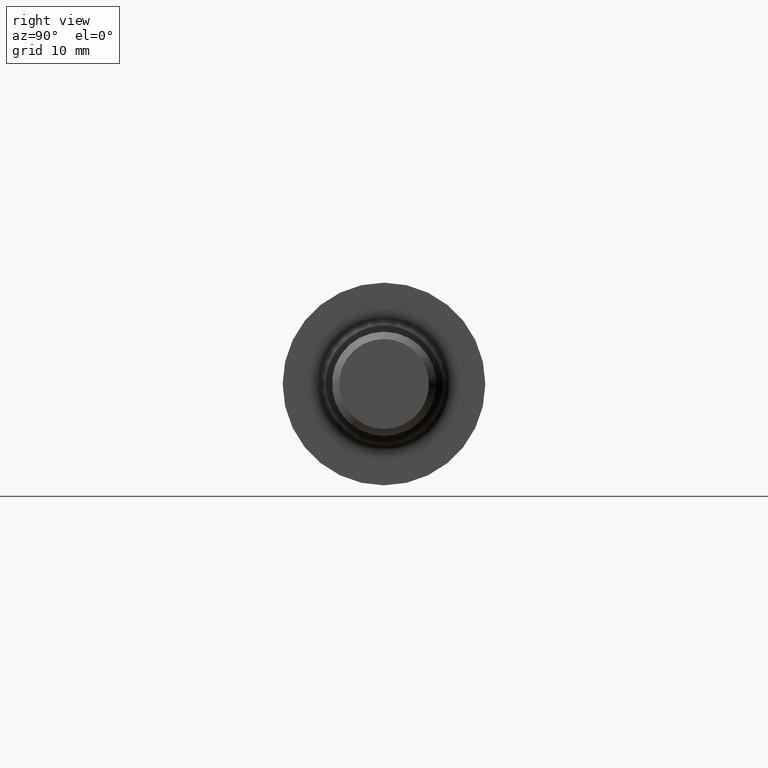
[diagram: clean part render]
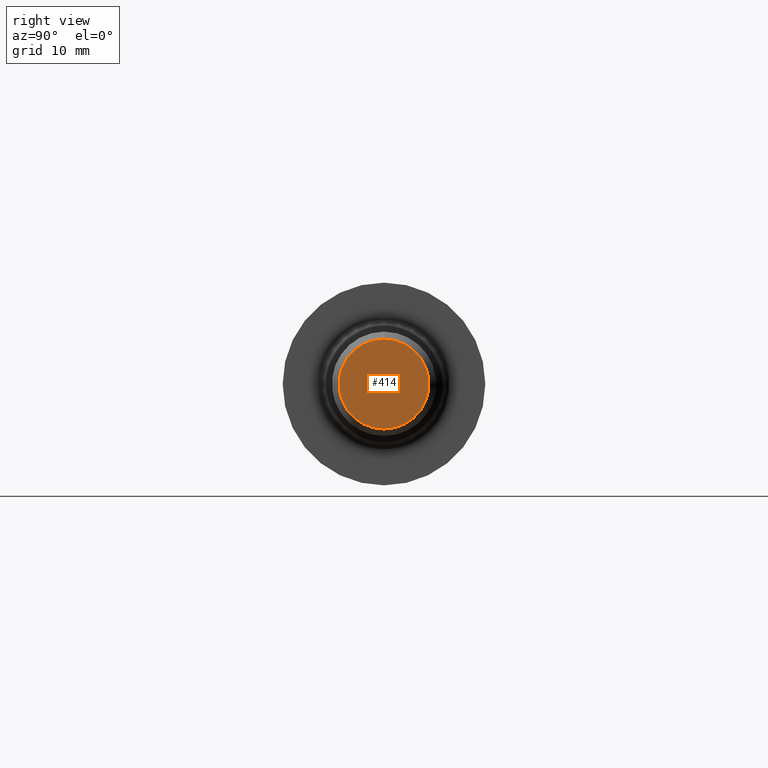
[diagram: same view with one face highlighted and labeled with its STEP entity id]
A machine part, right view. The second image highlights one B-rep face of the part: STEP entity #414.
In plain terms, the highlighted planar face has unit normal (-1, 0, -0).
Its self-contained STEP definition (entity closure, byte-faithful):
#67 = AXIS2_PLACEMENT_3D ( 'NONE', #779, #394, #644 ) ;
#72 = DIRECTION ( 'NONE',  ( -1.000000000000000000, -0.0000000000000000000, -0.0000000000000000000 ) ) ;
#110 = AXIS2_PLACEMENT_3D ( 'NONE', #528, #72, #656 ) ;
#147 = EDGE_CURVE ( 'NONE', #568, #497, #655, .T. ) ;
#198 = ORIENTED_EDGE ( 'NONE', *, *, #147, .F. ) ;
#354 = ORIENTED_EDGE ( 'NONE', *, *, #752, .F. ) ;
#368 = CARTESIAN_POINT ( 'NONE',  ( 3.250000000000000000, 0.0000000000000000000, 0.0000000000000000000 ) ) ;
#394 = DIRECTION ( 'NONE',  ( -1.000000000000000000, 0.0000000000000000000, -0.0000000000000000000 ) ) ;
#414 = ADVANCED_FACE ( 'NONE', ( #772 ), #718, .F. ) ;
#433 = DIRECTION ( 'NONE',  ( 0.0000000000000000000, 0.0000000000000000000, 1.000000000000000000 ) ) ;
#466 = CIRCLE ( 'NONE', #110, 0.2173589838486224002 ) ;
#497 = VERTEX_POINT ( 'NONE', #699 ) ;
#528 = CARTESIAN_POINT ( 'NONE',  ( 3.250000000000000000, 0.0000000000000000000, 0.0000000000000000000 ) ) ;
#566 = CARTESIAN_POINT ( 'NONE',  ( 3.250000000000000000, 0.0000000000000000000, 0.2173589838486224002 ) ) ;
#568 = VERTEX_POINT ( 'NONE', #566 ) ;
#644 = DIRECTION ( 'NONE',  ( -0.0000000000000000000, 0.0000000000000000000, 1.000000000000000000 ) ) ;
#655 = CIRCLE ( 'NONE', #794, 0.2173589838486224002 ) ;
#656 = DIRECTION ( 'NONE',  ( 0.0000000000000000000, 0.0000000000000000000, 1.000000000000000000 ) ) ;
#699 = CARTESIAN_POINT ( 'NONE',  ( 3.250000000000000000, 2.873994886106348916E-17, -0.2173589838486224002 ) ) ;
#718 = PLANE ( 'NONE',  #67 ) ;
#752 = EDGE_CURVE ( 'NONE', #497, #568, #466, .T. ) ;
#772 = FACE_OUTER_BOUND ( 'NONE', #798, .T. ) ;
#779 = CARTESIAN_POINT ( 'NONE',  ( 3.250000000000000000, 0.2173589838486224002, 0.0000000000000000000 ) ) ;
#794 = AXIS2_PLACEMENT_3D ( 'NONE', #368, #829, #433 ) ;
#798 = EDGE_LOOP ( 'NONE', ( #198, #354 ) ) ;
#829 = DIRECTION ( 'NONE',  ( -1.000000000000000000, -0.0000000000000000000, -0.0000000000000000000 ) ) ;